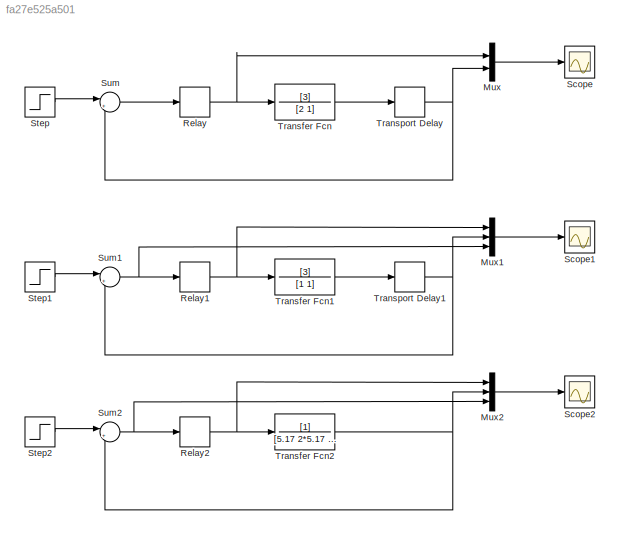
MODEL slx_fa27e525a501
KIND model
CONFIG AbsTol = auto
CONFIG FixedStep = 0.1
CONFIG MaxStep = auto
CONFIG MinStep = auto
CONFIG RelTol = 1e-3
CONFIG SampleTimeConstraint = Unconstrained
CONFIG Solver = ode3
CONFIG SolverMode = Auto
CONFIG SolverName = ode3
CONFIG StartTime = 0.0
CONFIG StopTime = 300
BLOCK [Mux] Mux
  DisplayOption = bar
  Inputs = 2
  Ports = [2, 1]
BLOCK [Mux] Mux1
  DisplayOption = bar
  Inputs = 3
  Ports = [3, 1]
BLOCK [Mux] Mux2
  DisplayOption = bar
  Inputs = 3
  Ports = [3, 1]
BLOCK [Relay] Relay
  InputProcessing = Elements as channels (sample based)
  OffOutputValue = -0.2
  OffSwitchValue = -0.4
  OnOutputValue = 0.8
  OnSwitchValue = 0.6
BLOCK [Relay] Relay1
  InputProcessing = Elements as channels (sample based)
  OffOutputValue = -1
  OffSwitchValue = 0.5-0.15
  OnSwitchValue = 0.5+0.15
BLOCK [Relay] Relay2
  InputProcessing = Elements as channels (sample based)
  OffOutputValue = -0.5
  OffSwitchValue = -0.3
  OnOutputValue = 2
  OnSwitchValue = 0.3
BLOCK [Scope] Scope
  DataFormat = StructureWithTime
  Floating = off
  LegendLocations = 0.87311     0.88299    0.098829    0.053097
  NumInputPorts = 1
  Ports = [1]
  SaveName = ScopeData1
  SaveToWorkspace = on
  ShowLegends = on
  ZoomMode = xonly
BLOCK [Scope] Scope1
  DataFormat = StructureWithTime
  Floating = off
  LegendLocations = 0.86872     0.85988     0.10322    0.076205
  NumInputPorts = 1
  Ports = [1]
  SaveName = ScopeData2
  SaveToWorkspace = on
  ShowLegends = on
  ZoomMode = xonly
BLOCK [Scope] Scope2
  DataFormat = StructureWithTime
  Floating = off
  LegendLocations = 0.86872     0.85988    0.091508    0.076205
  NumInputPorts = 1
  Ports = [1]
  SaveName = ScopeData3
  SaveToWorkspace = on
  ShowLegends = on
  ZoomMode = xonly
BLOCK [Step] Step
  SampleTime = 0
BLOCK [Step] Step1
  SampleTime = 0
BLOCK [Step] Step2
  SampleTime = 0
BLOCK [Sum] Sum
  IconShape = round
  InputSameDT = off
  Inputs = |+-
  OutDataTypeStr = Inherit: Inherit via internal rule
  Ports = [2, 1]
  SaturateOnIntegerOverflow = off
BLOCK [Sum] Sum1
  IconShape = round
  InputSameDT = off
  Inputs = |+-
  OutDataTypeStr = Inherit: Inherit via internal rule
  Ports = [2, 1]
  SaturateOnIntegerOverflow = off
BLOCK [Sum] Sum2
  IconShape = round
  InputSameDT = off
  Inputs = |+-
  OutDataTypeStr = Inherit: Inherit via internal rule
  Ports = [2, 1]
  SaturateOnIntegerOverflow = off
BLOCK [TransferFcn] Transfer Fcn
  Denominator = [2 1]
  Numerator = [3]
BLOCK [TransferFcn] Transfer Fcn1
  Numerator = [3]
BLOCK [TransferFcn] Transfer Fcn2
  Denominator = [5.17 2*5.17 1]
BLOCK [TransportDelay] Transport Delay
  DelayTime = 0.1
  Ports = [1, 1]
BLOCK [TransportDelay] Transport Delay1
  DelayTime = 0.5
  Ports = [1, 1]
LINE Mux1:1 -> Scope1:1
LINE Mux2:1 -> Scope2:1
LINE Mux:1 -> Scope:1
NET Relay1:1 -> Mux1:1, Transfer Fcn1:1
NET Relay2:1 -> Mux2:1, Transfer Fcn2:1
NET Relay:1 -> Mux:1, Transfer Fcn:1
LINE Step1:1 -> Sum1:1
LINE Step2:1 -> Sum2:1
LINE Step:1 -> Sum:1
NET Sum1:1 -> Mux1:3, Relay1:1
NET Sum2:1 -> Mux2:3, Relay2:1
LINE Sum:1 -> Relay:1
LINE Transfer Fcn1:1 -> Transport Delay1:1
NET Transfer Fcn2:1 -> Mux2:2, Sum2:2
LINE Transfer Fcn:1 -> Transport Delay:1
NET Transport Delay1:1 -> Mux1:2, Sum1:2
NET Transport Delay:1 -> Mux:2, Sum:2
note: NET lines group one-source signal fan-out (src -> all destinations, sorted); 1:1 wires keep LINE
